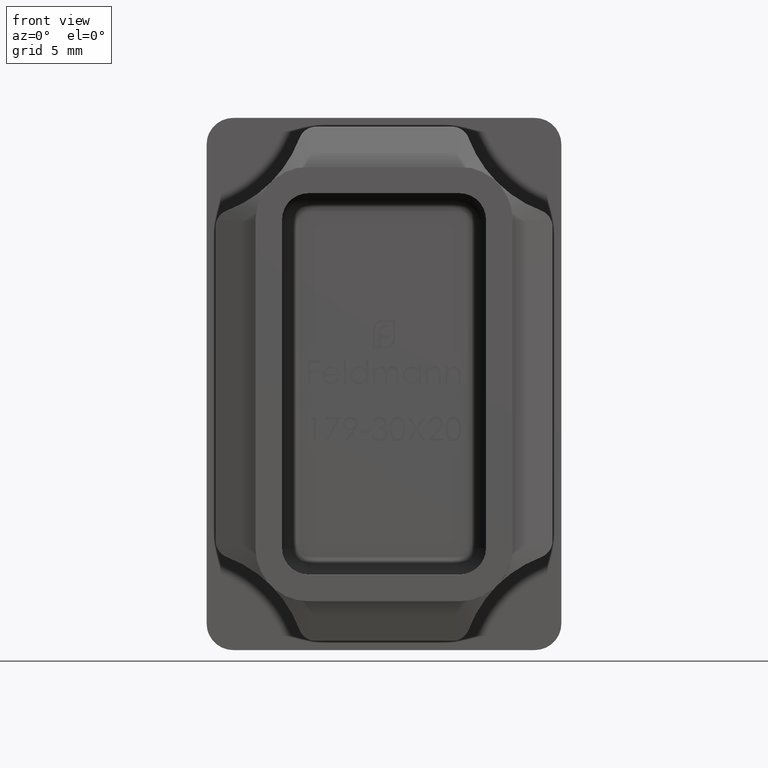
[diagram: clean part render]
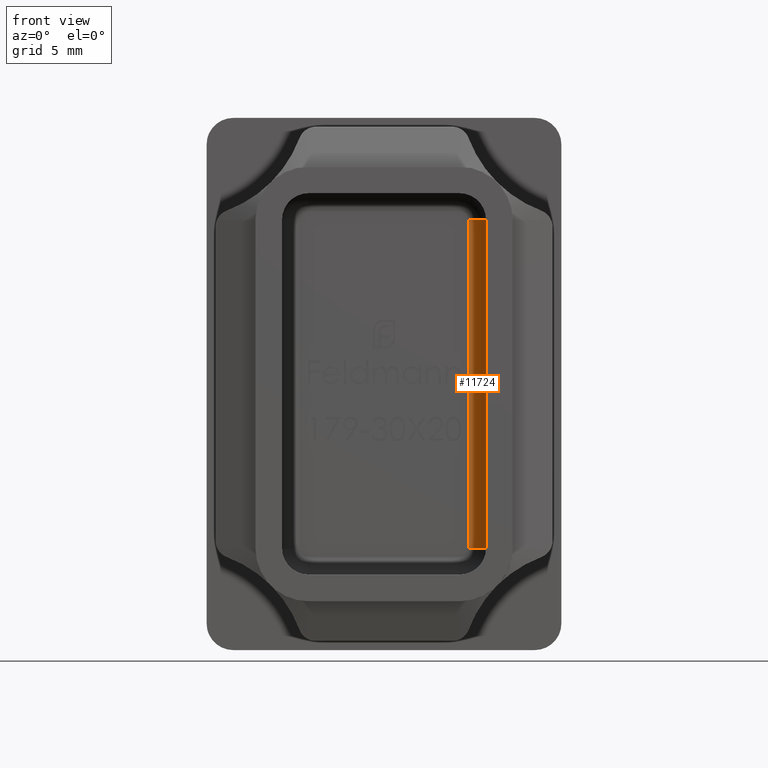
[diagram: same view with one face highlighted and labeled with its STEP entity id]
A machine part, front view. The second image highlights one B-rep face of the part: STEP entity #11724.
In plain terms, the highlighted cylindrical surface (edge-blend (fillet) strip) has radius 1 mm, axis along (-0, 0, 1).
Its self-contained STEP definition (entity closure, byte-faithful):
#57 = AXIS2_PLACEMENT_3D ( 'NONE', #14897, #13207, #10155 ) ;
#183 = CARTESIAN_POINT ( 'NONE',  ( 5.749999999999998224, -1.000000000000000888, 9.250000000000001776 ) ) ;
#957 = DIRECTION ( 'NONE',  ( -1.000000000000000000, 0.000000000000000000, 0.000000000000000000 ) ) ;
#1517 = LINE ( 'NONE', #8098, #11565 ) ;
#2020 = DIRECTION ( 'NONE',  ( -1.875376730785737719E-16, 0.000000000000000000, 1.000000000000000000 ) ) ;
#2095 = FACE_OUTER_BOUND ( 'NONE', #11356, .T. ) ;
#2097 = AXIS2_PLACEMENT_3D ( 'NONE', #16341, #14677, #957 ) ;
#2417 = LINE ( 'NONE', #6357, #3602 ) ;
#3602 = VECTOR ( 'NONE', #9561, 1000.000000000000000 ) ;
#3658 = VERTEX_POINT ( 'NONE', #7220 ) ;
#3817 = ORIENTED_EDGE ( 'NONE', *, *, #16306, .F. ) ;
#5762 = ORIENTED_EDGE ( 'NONE', *, *, #13548, .T. ) ;
#5913 = VERTEX_POINT ( 'NONE', #13753 ) ;
#6357 = CARTESIAN_POINT ( 'NONE',  ( 5.749999999999998224, -1.000000000000000888, 9.250000000000001776 ) ) ;
#6745 = CARTESIAN_POINT ( 'NONE',  ( 4.750000000000000000, -1.000000000000000000, 8.908039471232253180E-16 ) ) ;
#6809 = DIRECTION ( 'NONE',  ( -1.875376730785737719E-16, 0.000000000000000000, 1.000000000000000000 ) ) ;
#7220 = CARTESIAN_POINT ( 'NONE',  ( 4.750000000000001776, 0.000000000000000000, -9.249999999999998224 ) ) ;
#7503 = CIRCLE ( 'NONE', #2097, 1.000000000000000000 ) ;
#8098 = CARTESIAN_POINT ( 'NONE',  ( 4.750000000000000000, 0.000000000000000000, 8.908039471232253180E-16 ) ) ;
#8573 = ORIENTED_EDGE ( 'NONE', *, *, #18431, .F. ) ;
#9561 = DIRECTION ( 'NONE',  ( 1.875376730785737719E-16, -0.000000000000000000, -1.000000000000000000 ) ) ;
#9964 = CARTESIAN_POINT ( 'NONE',  ( 4.749999999999998224, 0.000000000000000000, 9.250000000000001776 ) ) ;
#10155 = DIRECTION ( 'NONE',  ( -1.000000000000000000, 0.000000000000000000, 0.000000000000000000 ) ) ;
#10276 = VERTEX_POINT ( 'NONE', #9964 ) ;
#11356 = EDGE_LOOP ( 'NONE', ( #5762, #3817, #8573, #14918 ) ) ;
#11565 = VECTOR ( 'NONE', #2020, 1000.000000000000000 ) ;
#11724 = ADVANCED_FACE ( 'NONE', ( #2095 ), #18856, .F. ) ;
#13207 = DIRECTION ( 'NONE',  ( 0.000000000000000000, 0.000000000000000000, -1.000000000000000000 ) ) ;
#13548 = EDGE_CURVE ( 'NONE', #3658, #5913, #7503, .T. ) ;
#13753 = CARTESIAN_POINT ( 'NONE',  ( 5.750000000000001776, -1.000000000000000888, -9.249999999999998224 ) ) ;
#13947 = VERTEX_POINT ( 'NONE', #183 ) ;
#14435 = EDGE_CURVE ( 'NONE', #3658, #10276, #1517, .T. ) ;
#14534 = AXIS2_PLACEMENT_3D ( 'NONE', #6745, #6809, #16079 ) ;
#14677 = DIRECTION ( 'NONE',  ( 0.000000000000000000, 0.000000000000000000, -1.000000000000000000 ) ) ;
#14897 = CARTESIAN_POINT ( 'NONE',  ( 4.749999999999998224, -1.000000000000000000, 9.250000000000001776 ) ) ;
#14918 = ORIENTED_EDGE ( 'NONE', *, *, #14435, .F. ) ;
#16079 = DIRECTION ( 'NONE',  ( 1.000000000000000000, 0.000000000000000000, 1.875376730785737473E-16 ) ) ;
#16306 = EDGE_CURVE ( 'NONE', #13947, #5913, #2417, .T. ) ;
#16341 = CARTESIAN_POINT ( 'NONE',  ( 4.750000000000001776, -1.000000000000000000, -9.249999999999998224 ) ) ;
#18431 = EDGE_CURVE ( 'NONE', #10276, #13947, #19124, .T. ) ;
#18856 = CYLINDRICAL_SURFACE ( 'NONE', #14534, 1.000000000000000000 ) ;
#19124 = CIRCLE ( 'NONE', #57, 1.000000000000000000 ) ;